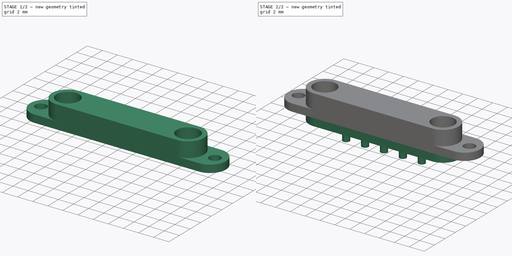
[diagram: build sequence overview — one tinted view per stage of 2, left to right]
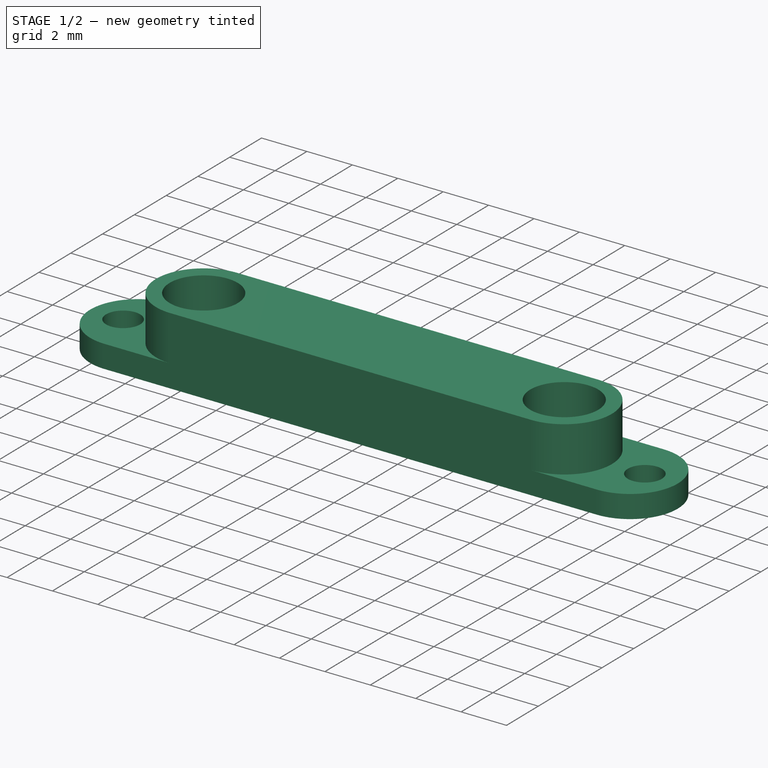
[diagram: stage 1 of 2 — iso view after this stage's code; geometry added in this stage tinted green]
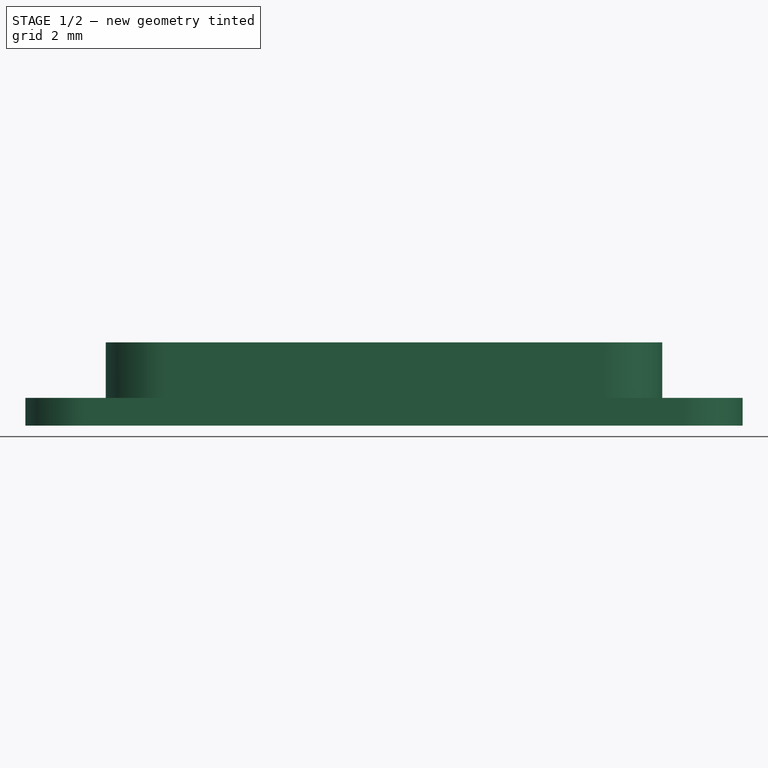
[diagram: stage 1 of 2 — front view after this stage's code; geometry added in this stage tinted green]
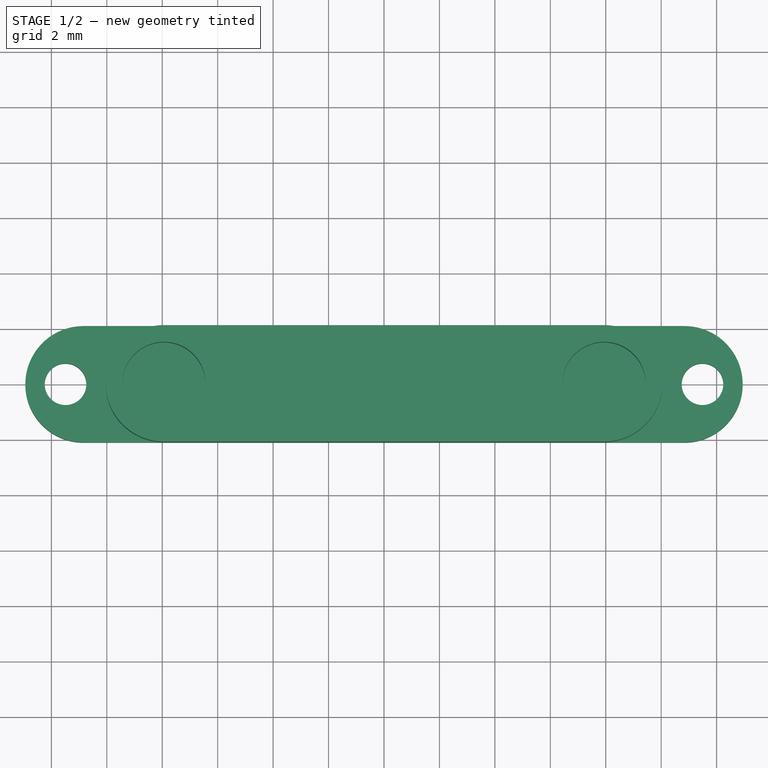
[diagram: stage 1 of 2 — top view after this stage's code; geometry added in this stage tinted green]
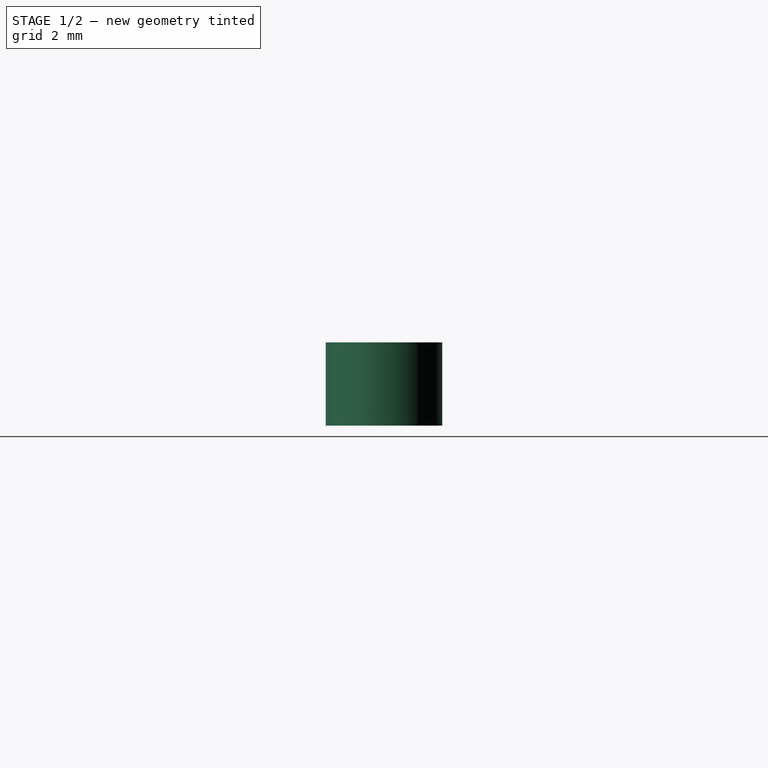
[diagram: stage 1 of 2 — right view after this stage's code; geometry added in this stage tinted green]
FCSTD DOCUMENT  (FreeCAD 1.0R39109 (Git))
Label: Magnet pogo 5pin female
License: All rights reserved
LicenseURL: https://en.wikipedia.org/wiki/All_rights_reserved
objects: Sketcher::SketchObject×4, PartDesign::Pad×4, PartDesign::Body×1
note: 21 computed .brp shape members not serialized (recipe doc carries the construction recipe); baked Part::Feature solids carry a one-line shape summary decoded from their .brp

FEATURE [Sketcher::SketchObject] Sketch
  ArcFitTolerance = 1e-06
  AttachmentSupport = -> [XY_Plane]
  FullyConstrained = true
  MakeInternals = false
  MapMode = 5
  sketch-geometry (7):
    g0: ArcOfCircle CenterX=10.84 CenterY=0 CenterZ=0 NormalX=0 NormalY=0 NormalZ=1 AngleXU=0 Radius=2.1 StartAngle=4.71239 EndAngle=7.85398
    g1: ArcOfCircle CenterX=-10.84 CenterY=0 CenterZ=0 NormalX=0 NormalY=0 NormalZ=1 AngleXU=0 Radius=2.1 StartAngle=1.5708 EndAngle=4.71239
    g2: LineSegment StartX=10.84 StartY=-2.1 StartZ=0 EndX=-10.84 EndY=-2.1 EndZ=0
    g3: LineSegment StartX=10.84 StartY=2.1 StartZ=0 EndX=-10.84 EndY=2.1 EndZ=0
    g4: LineSegment [constr] StartX=-12.94 StartY=0 StartZ=0 EndX=12.94 EndY=0 EndZ=0
    g5: Circle CenterX=-11.49 CenterY=-9e-16 CenterZ=0 NormalX=0 NormalY=0 NormalZ=1 AngleXU=0 Radius=0.75
    g6: Circle CenterX=11.49 CenterY=0 CenterZ=0 NormalX=0 NormalY=0 NormalZ=1 AngleXU=0 Radius=0.75
  constraints (18):
    c: Tangent(g0,g2) = 1.5708
    c: Tangent(g0,g3) = -1.5708
    c: Tangent(g1,g2) = 1.5708
    c: Tangent(g1,g3) = -1.5708
    c: Equal(g0,g1)
    c: PointOnObject(g1,g-1)
    c: Symmetric(g0,g1,g-2)
    c: DistanceY(g1,g1) = 4.2
    c: Horizontal(g4)
    c: PointOnObject(g4,g1)
    c: PointOnObject(g4,g0)
    c: DistanceX(g4,g4) = 25.88
    c: PointOnObject(g-1,g4)
    c: Symmetric(g6,g5,g-2)
    c: Equal(g6,g5)
    c: Diameter(g5) = 1.5
    c: DistanceX(g5,g6) = 22.98
    c: PointOnObject(g6,g-1)
FEATURE [PartDesign::Pad] Pad
  Direction = (0,0,1)
  Length = 1
  Length2 = 10
  Profile = -> Sketch
  ReferenceAxis = -> Sketch [N_Axis]
  Refine = true
  Reversed = true
  Suppressed = false
  Type = 0
FEATURE [Sketcher::SketchObject] Sketch001
  ArcFitTolerance = 1e-06
  AttachmentSupport = -> [XY_Plane]
  FullyConstrained = false
  MakeInternals = false
  MapMode = 5
  sketch-geometry (7):
    g0: ArcOfCircle CenterX=-7.94 CenterY=0 CenterZ=0 NormalX=0 NormalY=0 NormalZ=1 AngleXU=0 Radius=2.1 StartAngle=1.5708 EndAngle=4.71239
    g1: ArcOfCircle CenterX=7.94 CenterY=0 CenterZ=0 NormalX=0 NormalY=0 NormalZ=1 AngleXU=0 Radius=2.1 StartAngle=4.71239 EndAngle=7.85398
    g2: LineSegment StartX=-7.94 StartY=2.1 StartZ=0 EndX=7.94 EndY=2.1 EndZ=0
    g3: LineSegment StartX=-7.94 StartY=-2.1 StartZ=0 EndX=7.94 EndY=-2.1 EndZ=0
    g4: LineSegment [constr] StartX=-10.04 StartY=0 StartZ=0 EndX=10.04 EndY=0 EndZ=0
    g5: Circle CenterX=-7.94 CenterY=0 CenterZ=0 NormalX=0 NormalY=0 NormalZ=1 AngleXU=0 Radius=1.5
    g6: Circle CenterX=7.94 CenterY=0 CenterZ=0 NormalX=0 NormalY=0 NormalZ=1 AngleXU=0 Radius=1.5
  constraints (16):
    c: Tangent(g0,g2) = 1.5708
    c: Tangent(g0,g3) = -1.5708
    c: Tangent(g1,g2) = 1.5708
    c: Tangent(g1,g3) = -1.5708
    c: Equal(g0,g1)
    c: PointOnObject(g0,g-1)
    c: Symmetric(g1,g0,g-2)
    c: DistanceY(g0,g0) = 4.2
    c: Horizontal(g4)
    c: PointOnObject(g4,g0)
    c: PointOnObject(g4,g1)
    c: PointOnObject(g-1,g4)
    c: DistanceX(g4,g4) = 20.08
    c: Coincident(g5,g0)
    c: Coincident(g6,g1)
    c: Equal(g6,g5)
FEATURE [PartDesign::Pad] Pad001
  BaseFeature = -> Pad
  Direction = (0,0,1)
  Length = 2
  Length2 = 10
  Profile = -> Sketch001
  ReferenceAxis = -> Sketch001 [N_Axis]
  Refine = true
  Suppressed = false
  Type = 0
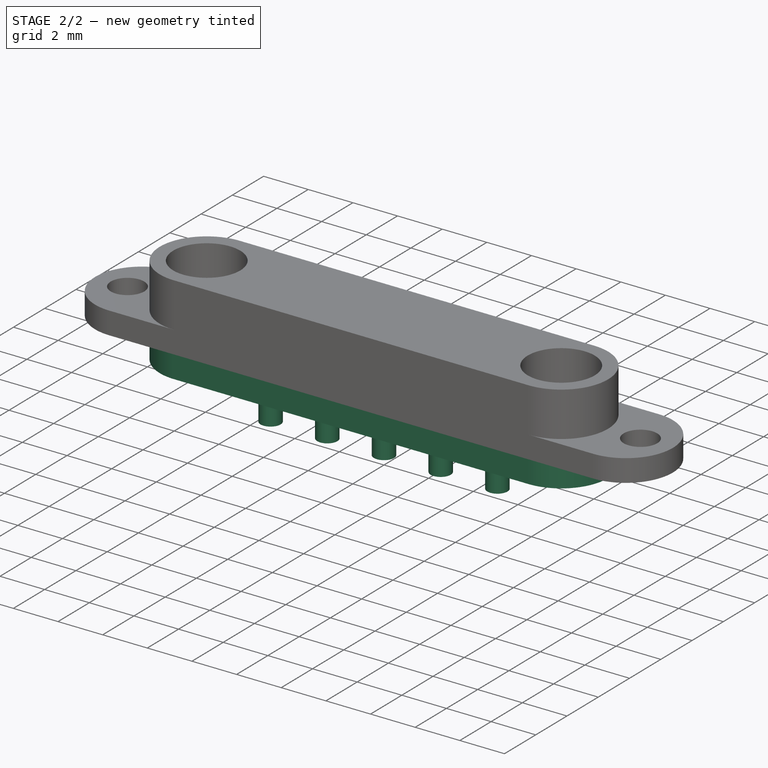
[diagram: stage 2 of 2 — iso view after this stage's code; geometry added in this stage tinted green]
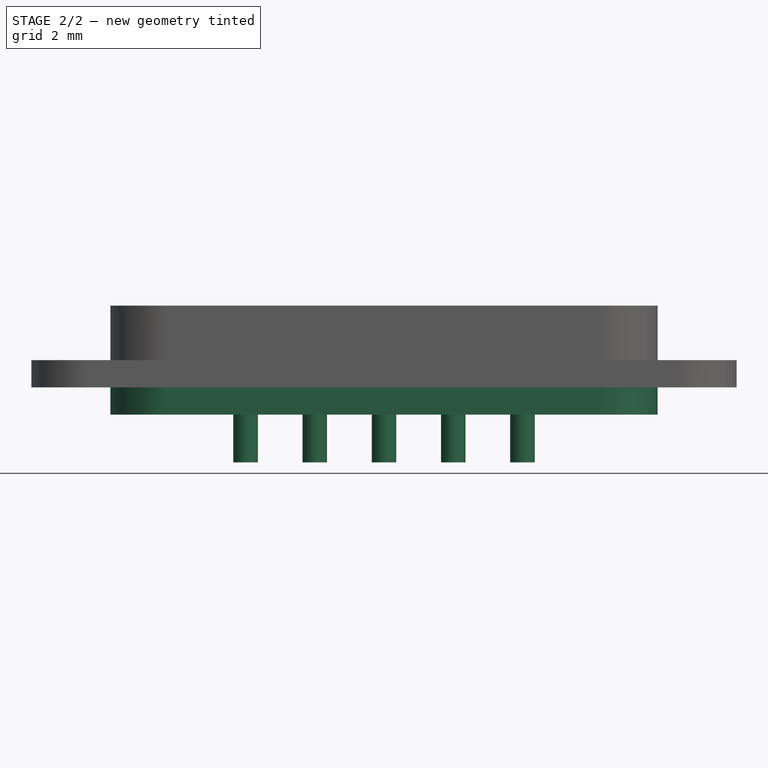
[diagram: stage 2 of 2 — front view after this stage's code; geometry added in this stage tinted green]
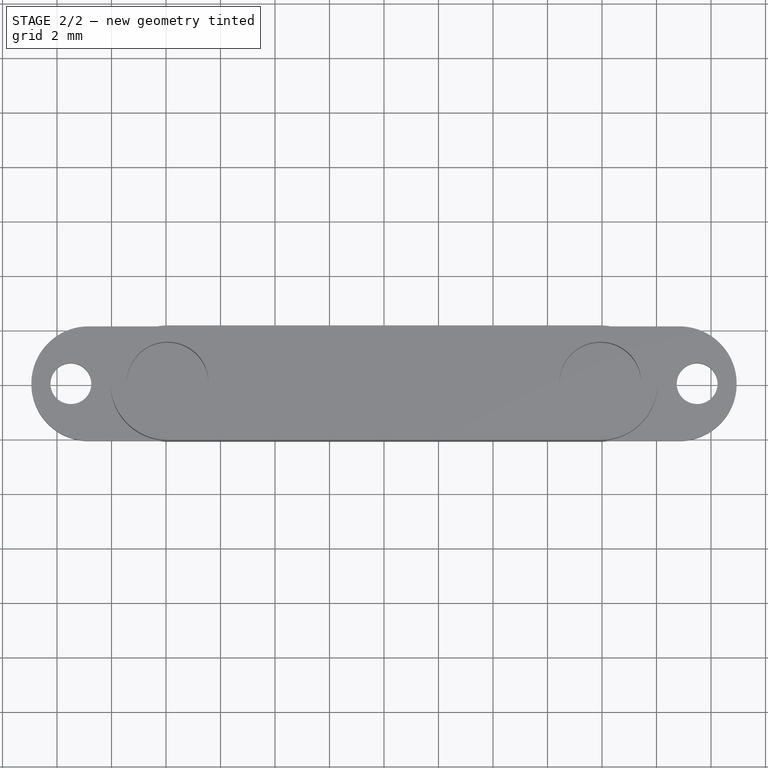
[diagram: stage 2 of 2 — top view after this stage's code; geometry added in this stage tinted green]
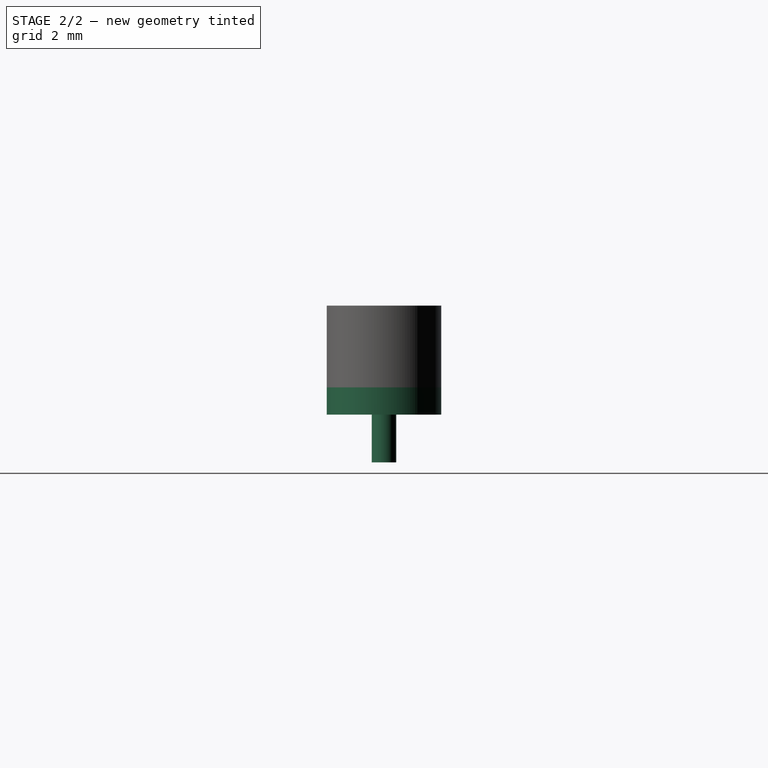
[diagram: stage 2 of 2 — right view after this stage's code; geometry added in this stage tinted green]
FEATURE [Sketcher::SketchObject] Sketch002
  ArcFitTolerance = 1e-06
  AttachmentSupport = -> [XY_Plane]
  ExternalGeometry = -> [Pad001]
  FullyConstrained = false
  MakeInternals = false
  MapMode = 5
  sketch-geometry (4):
    g0: ArcOfCircle CenterX=-7.94 CenterY=-1.403e-13 CenterZ=0 NormalX=0 NormalY=0 NormalZ=1 AngleXU=0 Radius=2.1 StartAngle=1.5708 EndAngle=4.71239
    g1: ArcOfCircle CenterX=7.94 CenterY=-1.403e-13 CenterZ=0 NormalX=0 NormalY=0 NormalZ=1 AngleXU=0 Radius=2.1 StartAngle=4.71239 EndAngle=7.85398
    g2: LineSegment StartX=-7.94 StartY=2.1 StartZ=0 EndX=7.94 EndY=2.1 EndZ=0
    g3: LineSegment StartX=-7.94 StartY=-2.1 StartZ=0 EndX=7.94 EndY=-2.1 EndZ=0
  constraints (6):
    c: Tangent(g0,g2) = 1.5708
    c: Tangent(g0,g3) = -1.5708
    c: Tangent(g1,g2) = 1.5708
    c: Tangent(g1,g3) = -1.5708
    c: Equal(g0,g1)
    c: Horizontal(g3)
FEATURE [PartDesign::Pad] Pad002
  BaseFeature = -> Pad001
  Direction = (0,0,1)
  Length = 2
  Length2 = 10
  Profile = -> Sketch002
  ReferenceAxis = -> Sketch002 [N_Axis]
  Refine = true
  Reversed = true
  Suppressed = false
  Type = 0
FEATURE [Sketcher::SketchObject] Sketch003
  ArcFitTolerance = 1e-06
  AttachmentSupport = -> [XY_Plane]
  FullyConstrained = true
  MakeInternals = false
  MapMode = 5
  sketch-geometry (9):
    g0: Circle CenterX=-5.08 CenterY=0 CenterZ=0 NormalX=0 NormalY=0 NormalZ=1 AngleXU=0 Radius=0.45
    g1: Circle CenterX=-2.54 CenterY=0 CenterZ=0 NormalX=0 NormalY=0 NormalZ=1 AngleXU=0 Radius=0.45
    g2: Circle CenterX=0 CenterY=0 CenterZ=0 NormalX=0 NormalY=0 NormalZ=1 AngleXU=0 Radius=0.45
    g3: Circle CenterX=2.54 CenterY=0 CenterZ=0 NormalX=0 NormalY=0 NormalZ=1 AngleXU=0 Radius=0.45
    g4: Circle CenterX=5.08 CenterY=0 CenterZ=0 NormalX=0 NormalY=0 NormalZ=1 AngleXU=0 Radius=0.45
    g5: LineSegment [constr] StartX=-5.08 StartY=0 StartZ=0 EndX=-2.54 EndY=0 EndZ=0
    g6: LineSegment [constr] StartX=0 StartY=0 StartZ=0 EndX=-2.54 EndY=0 EndZ=0
    g7: LineSegment [constr] StartX=0 StartY=0 StartZ=0 EndX=2.54 EndY=0 EndZ=0
    g8: LineSegment [constr] StartX=2.54 StartY=0 StartZ=0 EndX=5.08 EndY=0 EndZ=0
  constraints (22):
    c: Horizontal(g0,g1)
    c: Horizontal(g1,g2)
    c: Horizontal(g2,g3)
    c: Equal(g0,g1)
    c: Equal(g1,g2)
    c: Equal(g2,g3)
    c: Equal(g3,g4)
    c: Coincident(g5,g0)
    c: Coincident(g5,g1)
    c: Coincident(g6,g2)
    c: Coincident(g6,g1)
    c: Coincident(g7,g2)
    c: Coincident(g7,g3)
    c: Coincident(g8,g3)
    c: Coincident(g8,g4)
    c: Equal(g8,g7)
    c: Equal(g7,g6)
    c: Equal(g6,g5)
    c: Horizontal(g8)
    c: Diameter(g0) = 0.9
    c: DistanceX(g5,g5) = 2.54
    c: Coincident(g-1,g2)
FEATURE [PartDesign::Pad] Pad003
  BaseFeature = -> Pad002
  Direction = (0,0,1)
  Length = 0
  Length2 = 3.75
  Profile = -> Sketch003
  ReferenceAxis = -> Sketch003 [N_Axis]
  Refine = true
  Suppressed = false
  Type = 4
FEATURE [PartDesign::Body] Body
  AllowCompound = false
  Group = -> [Sketch,Pad,Sketch001,Pad001,Sketch002,Pad002,Sketch003,Pad003]
  Origin = -> Origin
  Tip = -> Pad003
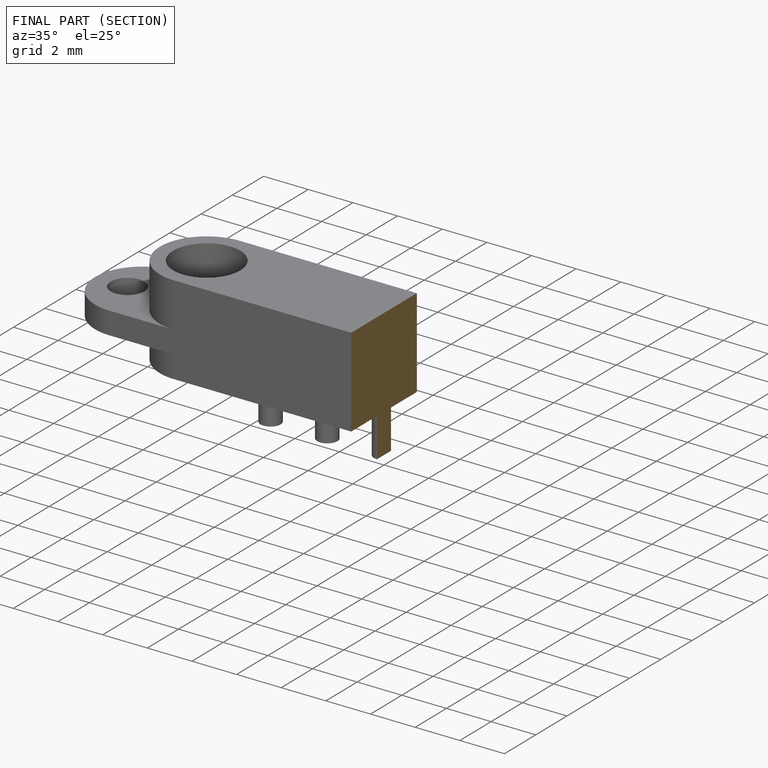
[diagram: finished part — half-section view (interior)]
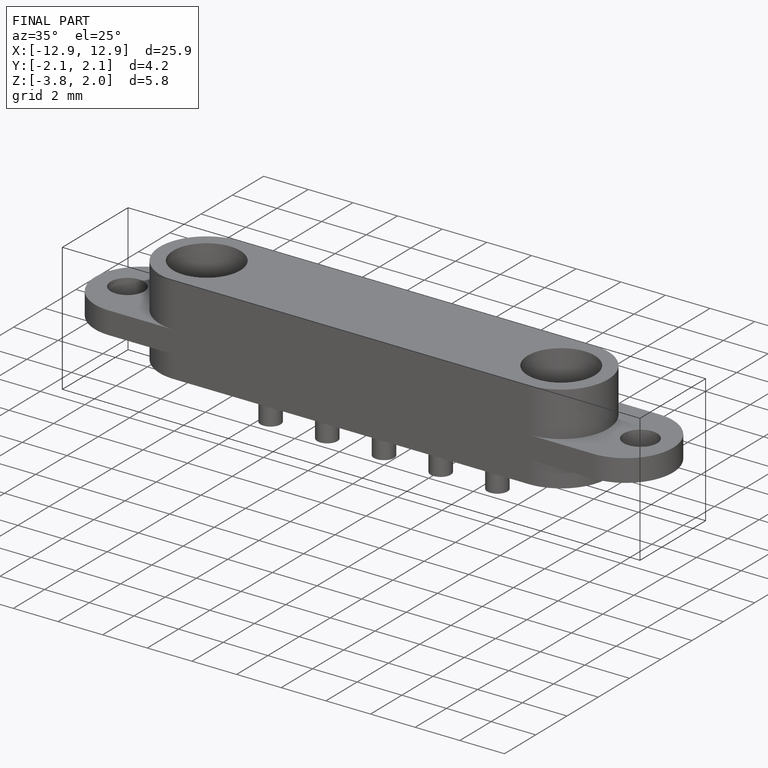
[diagram: finished part — iso view with bounding-box wireframe]
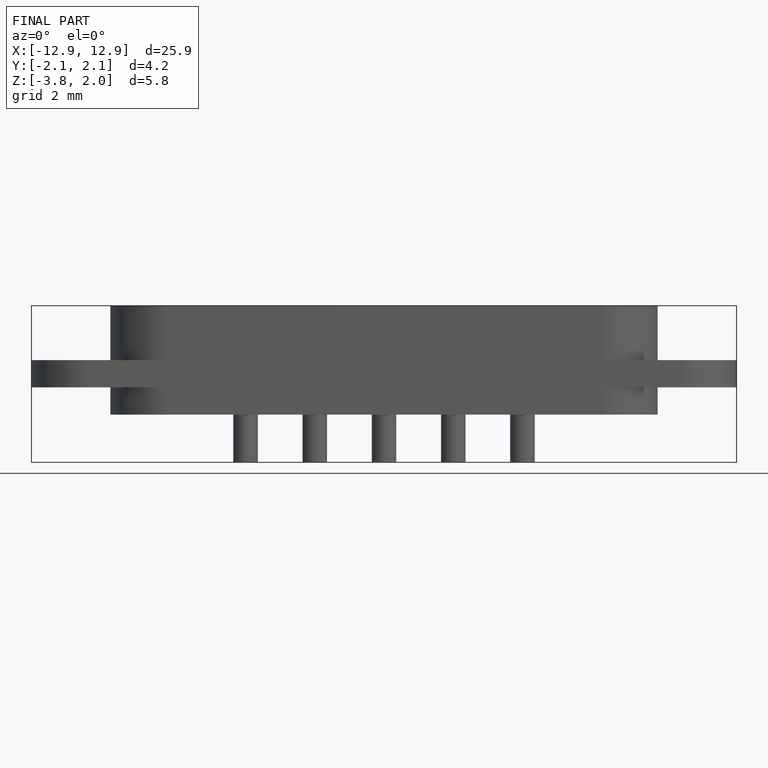
[diagram: finished part — front view with bounding-box wireframe]
